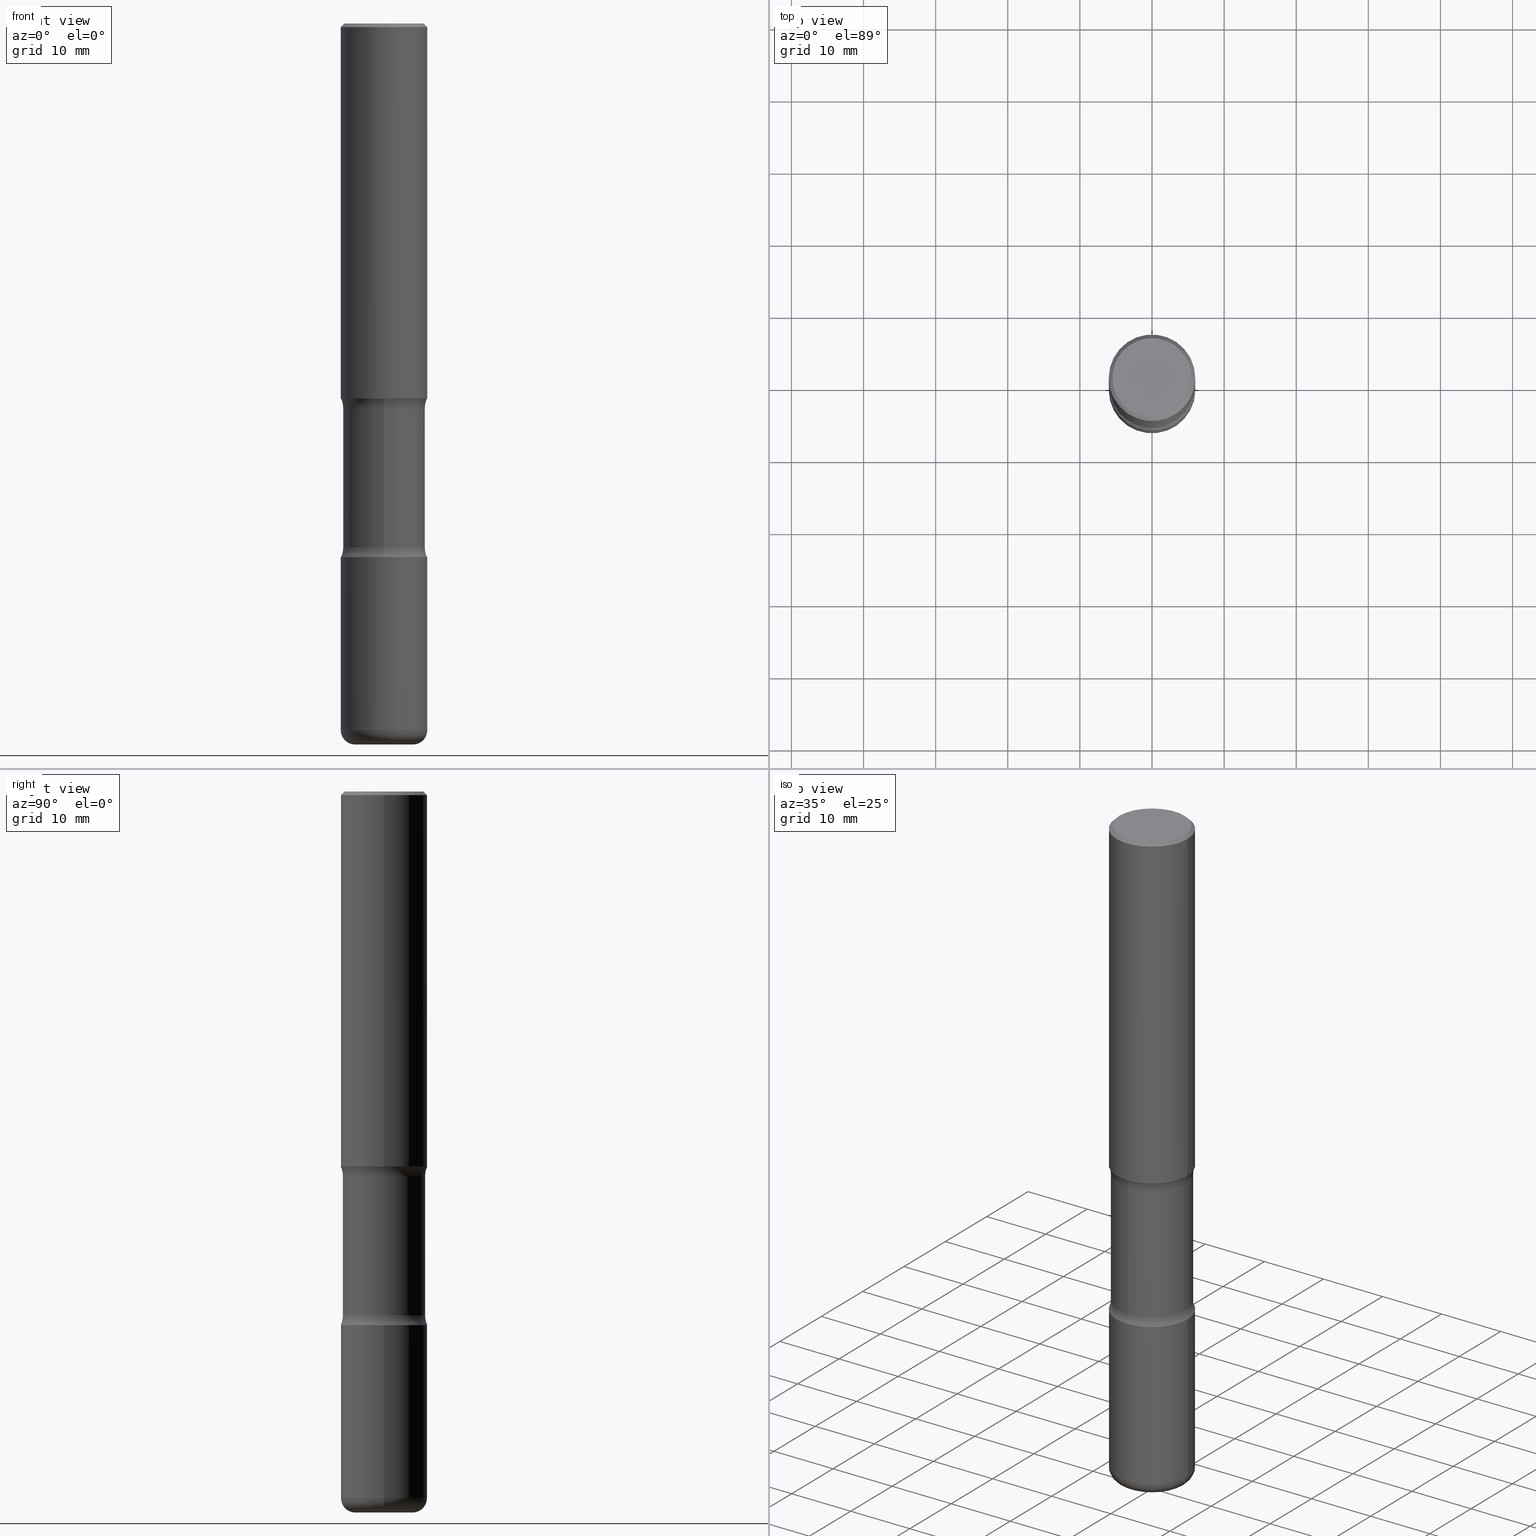
[diagram: canonical four-view strip — front | top / right | iso, engineering-drawing reading convention]
A machine part, canonical four-view strip (front | top / right | iso — engineering-drawing reading convention). The complete STEP part file that produces these views, byte-faithful:
ISO-10303-21;
HEADER;
FILE_DESCRIPTION (( 'STEP AP203' ),
    '1' );
FILE_NAME ('47707.STEP',
    '2024-03-02T07:35:20',
    ( '' ),
    ( '' ),
    'SwSTEP 2.0',
    'SolidWorks 2023',
    '' );
FILE_SCHEMA (( 'CONFIG_CONTROL_DESIGN' ));
ENDSEC;

DATA;
#1 = PRODUCT ( '47707', '47707', '', ( #417 ) ) ;
#2 = COORDINATED_UNIVERSAL_TIME_OFFSET ( 5, 0, .BEHIND. ) ;
#3 = EDGE_CURVE ( 'NONE', #287, #498, #334, .T. ) ;
#4 = CARTESIAN_POINT ( 'NONE',  ( 5.006363740022212241E-29, -7.147760596879688202E-15, -2.047200000000000131 ) ) ;
#5 = CIRCLE ( 'NONE', #428, 0.2161999999999998368 ) ;
#6 = CIRCLE ( 'NONE', #93, 0.2362000000000001321 ) ;
#7 = COORDINATED_UNIVERSAL_TIME_OFFSET ( 5, 0, .BEHIND. ) ;
#8 = CARTESIAN_POINT ( 'NONE',  ( 0.2362000000000003264, -1.512055823412800345E-14, -3.858299999999998509 ) ) ;
#9 = CARTESIAN_POINT ( 'NONE',  ( 5.088323202950023588E-29, -7.401163270367792936E-15, -2.100216601173595432 ) ) ;
#10 = EDGE_CURVE ( 'NONE', #498, #205, #261, .T. ) ;
#11 = APPROVAL_STATUS ( 'not_yet_approved' ) ;
#12 = DIRECTION ( 'NONE',  ( 6.982962677686265922E-15, 1.000000000000000000, -3.376177443336566513E-15 ) ) ;
#13 = EDGE_CURVE ( 'NONE', #342, #363, #156, .T. ) ;
#14 = DATE_AND_TIME ( #179, #405 ) ;
#15 = AXIS2_PLACEMENT_3D ( 'NONE', #37, #251, #169 ) ;
#16 = LOCAL_TIME ( 2, 35, 20.00000000000000000, #7 ) ;
#17 = CARTESIAN_POINT ( 'NONE',  ( -1.043851414335219820E-46, 1.490343170380447200E-32, 4.268512490100411279E-18 ) ) ;
#18 = ORIENTED_EDGE ( 'NONE', *, *, #198, .F. ) ;
#19 = DIRECTION ( 'NONE',  ( 6.982962677686265922E-15, 1.000000000000000000, -3.376177443336566513E-15 ) ) ;
#20 = EDGE_CURVE ( 'NONE', #200, #287, #5, .T. ) ;
#21 = ORIENTED_EDGE ( 'NONE', *, *, #212, .F. ) ;
#22 = CIRCLE ( 'NONE', #396, 0.2362000000000001321 ) ;
#23 = DIRECTION ( 'NONE',  ( 6.982962677686265922E-15, 1.000000000000000000, -2.434802133390609421E-15 ) ) ;
#24 = APPROVAL_PERSON_ORGANIZATION ( #525, #544, #97 ) ;
#25 = ORIENTED_EDGE ( 'NONE', *, *, #325, .F. ) ;
#26 = CARTESIAN_POINT ( 'NONE',  ( -0.1575000000000002232, -1.235207764083634616E-14, -3.858299999999998509 ) ) ;
#27 = ORIENTED_EDGE ( 'NONE', *, *, #220, .T. ) ;
#28 = EDGE_CURVE ( 'NONE', #114, #275, #127, .T. ) ;
#29 = CARTESIAN_POINT ( 'NONE',  ( 5.070539682259229331E-29, -7.426630284172150130E-15, -2.100216601173595432 ) ) ;
#30 = ORIENTED_EDGE ( 'NONE', *, *, #531, .T. ) ;
#31 = ADVANCED_FACE ( 'NONE', ( #338 ), #208, .T. ) ;
#32 = DIRECTION ( 'NONE',  ( 2.438088387897960049E-29, -3.491481338843145188E-15, -1.000000000000000000 ) ) ;
#33 = CIRCLE ( 'NONE', #41, 0.2362000000000001321 ) ;
#34 = VERTEX_POINT ( 'NONE', #520 ) ;
#35 = AXIS2_PLACEMENT_3D ( 'NONE', #284, #237, #199 ) ;
#36 = CARTESIAN_POINT ( 'NONE',  ( 0.000000000000000000, 0.000000000000000000, 0.000000000000000000 ) ) ;
#37 = CARTESIAN_POINT ( 'NONE',  ( 9.435352294904109900E-29, -1.347118244965850534E-14, -3.858299999999998509 ) ) ;
#38 = EDGE_CURVE ( 'NONE', #66, #224, #33, .T. ) ;
#39 = DIRECTION ( 'NONE',  ( 1.000000000000000000, -6.982962677686266711E-15, 4.876217060660159599E-29 ) ) ;
#40 = FACE_OUTER_BOUND ( 'NONE', #191, .T. ) ;
#41 = AXIS2_PLACEMENT_3D ( 'NONE', #124, #466, #382 ) ;
#42 = EDGE_CURVE ( 'NONE', #363, #342, #84, .T. ) ;
#43 = AXIS2_PLACEMENT_3D ( 'NONE', #298, #327, #293 ) ;
#44 = DIRECTION ( 'NONE',  ( -2.445468806185136597E-29, 3.491481338843145583E-15, 1.000000000000000000 ) ) ;
#45 = EDGE_CURVE ( 'NONE', #462, #73, #560, .T. ) ;
#46 = FACE_OUTER_BOUND ( 'NONE', #215, .T. ) ;
#47 = FACE_OUTER_BOUND ( 'NONE', #368, .T. ) ;
#48 = AXIS2_PLACEMENT_3D ( 'NONE', #258, #427, #390 ) ;
#49 = VECTOR ( 'NONE', #171, 39.37007874015748143 ) ;
#50 = CARTESIAN_POINT ( 'NONE',  ( 0.1575000000000002232, -1.457099907139409361E-14, -3.858299999999998509 ) ) ;
#51 = ORIENTED_EDGE ( 'NONE', *, *, #42, .T. ) ;
#52 = CALENDAR_DATE ( 2024, 2, 3 ) ;
#53 = FACE_OUTER_BOUND ( 'NONE', #451, .T. ) ;
#54 = EDGE_CURVE ( 'NONE', #468, #73, #188, .T. ) ;
#55 = PLANE ( 'NONE',  #461 ) ;
#56 = TOROIDAL_SURFACE ( 'NONE', #420, 0.1575000000000002232, 0.07870000000000021423 ) ;
#57 = CIRCLE ( 'NONE', #168, 0.2362000000000002153 ) ;
#58 = DIRECTION ( 'NONE',  ( -2.445468806185136597E-29, 3.491481338843145583E-15, 1.000000000000000000 ) ) ;
#59 = PRODUCT_RELATED_PRODUCT_CATEGORY ( 'detail', '', ( #1 ) ) ;
#60 = DIRECTION ( 'NONE',  ( 2.445468806185136597E-29, -3.491481338843145583E-15, -1.000000000000000000 ) ) ;
#61 = DIRECTION ( 'NONE',  ( 6.982962677686265922E-15, 1.000000000000000000, -2.313165108945183485E-15 ) ) ;
#62 = ORIENTED_EDGE ( 'NONE', *, *, #186, .F. ) ;
#63 = AXIS2_PLACEMENT_3D ( 'NONE', #96, #268, #181 ) ;
#64 = CARTESIAN_POINT ( 'NONE',  ( -0.2361999999999999933, 1.678301941865356591E-15, -1.161852468318208757E-29 ) ) ;
#65 = ORGANIZATION ( 'UNSPECIFIED', 'UNSPECIFIED', '' ) ;
#66 = VERTEX_POINT ( 'NONE', #130 ) ;
#67 = ORIENTED_EDGE ( 'NONE', *, *, #20, .T. ) ;
#68 = CARTESIAN_POINT ( 'NONE',  ( 4.936620538380257512E-29, -7.247636831167487464E-15, -2.047200000000000131 ) ) ;
#69 = EDGE_LOOP ( 'NONE', ( #266, #443 ) ) ;
#70 = ORIENTED_EDGE ( 'NONE', *, *, #83, .T. ) ;
#71 = ORIENTED_EDGE ( 'NONE', *, *, #111, .T. ) ;
#72 = FACE_OUTER_BOUND ( 'NONE', #503, .T. ) ;
#73 = VERTEX_POINT ( 'NONE', #204 ) ;
#74 = ADVANCED_FACE ( 'NONE', ( #376 ), #404, .F. ) ;
#75 = AXIS2_PLACEMENT_3D ( 'NONE', #457, #460, #118 ) ;
#76 = CARTESIAN_POINT ( 'NONE',  ( -0.2361999999999998823, 1.579546157692632438E-15, -0.02000000000000006981 ) ) ;
#77 =( CONVERSION_BASED_UNIT ( 'INCH', #450 ) LENGTH_UNIT ( ) NAMED_UNIT ( #313 ) );
#78 = CARTESIAN_POINT ( 'NONE',  ( -1.043851414335219820E-46, 1.490343170380447200E-32, 4.268512490100411279E-18 ) ) ;
#79 = DIRECTION ( 'NONE',  ( -2.445468806185136597E-29, 3.491481338843145583E-15, 1.000000000000000000 ) ) ;
#80 = CARTESIAN_POINT ( 'NONE',  ( -0.2362000000000003264, -1.179288050779314737E-14, -3.858299999999998509 ) ) ;
#81 = CARTESIAN_POINT ( 'NONE',  ( -0.2361999999999998823, 1.579546157692632438E-15, -0.02000000000000006981 ) ) ;
#82 = FACE_OUTER_BOUND ( 'NONE', #228, .T. ) ;
#83 = EDGE_CURVE ( 'NONE', #462, #34, #506, .T. ) ;
#84 = CIRCLE ( 'NONE', #496, 0.1575000000000002232 ) ;
#85 = CONICAL_SURFACE ( 'NONE', #174, 0.2361999999999998823, 0.7853981633974479459 ) ;
#86 = DIRECTION ( 'NONE',  ( -2.445468806185136597E-29, 3.491481338843145583E-15, 1.000000000000000000 ) ) ;
#87 = CARTESIAN_POINT ( 'NONE',  ( 6.994978375559792251E-29, -9.986975258939122984E-15, -2.860383398826405354 ) ) ;
#88 = UNCERTAINTY_MEASURE_WITH_UNIT (LENGTH_MEASURE( 1.000000000000000082E-05 ), #77, 'distance_accuracy_value', 'NONE');
#89 = SHAPE_DEFINITION_REPRESENTATION ( #242, #247 ) ;
#90 = DIRECTION ( 'NONE',  ( -2.445468806185136877E-29, 3.491481338843145188E-15, 1.000000000000000000 ) ) ;
#91 = DIRECTION ( 'NONE',  ( 1.000000000000000000, -6.982962677686268288E-15, 4.883557194083113462E-29 ) ) ;
#92 = CLOSED_SHELL ( 'NONE', ( #346, #301, #391, #389, #161, #521 ) ) ;
#93 = AXIS2_PLACEMENT_3D ( 'NONE', #378, #117, #373 ) ;
#94 = COORDINATED_UNIVERSAL_TIME_OFFSET ( 5, 0, .BEHIND. ) ;
#95 = EDGE_LOOP ( 'NONE', ( #491, #27, #329, #410 ) ) ;
#96 = CARTESIAN_POINT ( 'NONE',  ( 0.000000000000000000, 0.000000000000000000, 0.000000000000000000 ) ) ;
#97 = APPROVAL_ROLE ( '' ) ;
#98 = CARTESIAN_POINT ( 'NONE',  ( 0.2161999999999998368, -1.586759460484351002E-15, 4.268512490111238857E-18 ) ) ;
#99 = DIRECTION ( 'NONE',  ( 2.525985086076564115E-29, -3.376177443336566513E-15, -1.000000000000000000 ) ) ;
#100 = EDGE_CURVE ( 'NONE', #105, #538, #22, .T. ) ;
#101 = AXIS2_PLACEMENT_3D ( 'NONE', #555, #44, #300 ) ;
#102 = TOROIDAL_SURFACE ( 'NONE', #518, 0.3493999999999999884, 0.1250000000000000000 ) ;
#103 = CARTESIAN_POINT ( 'NONE',  ( -1.579972688886713168E-15, -0.2244000000000099804, -2.860383398826404466 ) ) ;
#104 = CARTESIAN_POINT ( 'NONE',  ( 0.000000000000000000, 0.000000000000000000, 0.000000000000000000 ) ) ;
#105 = VERTEX_POINT ( 'NONE', #207 ) ;
#106 = MANIFOLD_SOLID_BREP ( 'Body-Move/Copy2[2]', #92 ) ;
#107 = CARTESIAN_POINT ( 'NONE',  ( 7.124628819939777829E-29, -1.017208173258562247E-14, -2.913400000000000212 ) ) ;
#108 = VERTEX_POINT ( 'NONE', #172 ) ;
#109 = CIRCLE ( 'NONE', #306, 0.2362000000000001321 ) ;
#110 = DIRECTION ( 'NONE',  ( -2.445468806185136597E-29, 3.491481338843145583E-15, 1.000000000000000000 ) ) ;
#111 = EDGE_CURVE ( 'NONE', #108, #468, #109, .T. ) ;
#112 = ORIENTED_EDGE ( 'NONE', *, *, #494, .F. ) ;
#113 = FACE_OUTER_BOUND ( 'NONE', #257, .T. ) ;
#114 = VERTEX_POINT ( 'NONE', #80 ) ;
#115 = DIRECTION ( 'NONE',  ( 6.982962677686265922E-15, 1.000000000000000000, -2.434802133390609421E-15 ) ) ;
#116 = ORIENTED_EDGE ( 'NONE', *, *, #246, .T. ) ;
#117 = DIRECTION ( 'NONE',  ( -2.445468806185136597E-29, 3.491481338843145583E-15, 1.000000000000000000 ) ) ;
#118 = DIRECTION ( 'NONE',  ( 6.982962677686265922E-15, 1.000000000000000000, -3.652203200085913934E-15 ) ) ;
#119 = CC_DESIGN_APPROVAL ( #292, ( #449 ) ) ;
#120 = APPROVAL_STATUS ( 'not_yet_approved' ) ;
#121 = DIRECTION ( 'NONE',  ( 6.982962677686265922E-15, 1.000000000000000000, -2.434802133390609815E-15 ) ) ;
#122 = PERSON ( 'UNSPECIFIED', 'UNSPECIFIED', 'UNSPECIFIED', ('UNSPECIFIED'), ('UNSPECIFIED'), ('UNSPECIFIED') ) ;
#123 = CARTESIAN_POINT ( 'NONE',  ( -2.397058000421320660E-15, -0.3494000000000072048, -2.100216601173594544 ) ) ;
#124 = CARTESIAN_POINT ( 'NONE',  ( 7.124628819939777829E-29, -1.017208173258562247E-14, -2.913400000000000212 ) ) ;
#125 = ADVANCED_FACE ( 'NONE', ( #46 ), #248, .T. ) ;
#126 = CARTESIAN_POINT ( 'NONE',  ( 1.566976824872894642E-15, 0.2243999999999863049, -3.937000000000000721 ) ) ;
#127 = CIRCLE ( 'NONE', #15, 0.2362000000000002153 ) ;
#128 = AXIS2_PLACEMENT_3D ( 'NONE', #361, #371, #234 ) ;
#129 = PERSON_AND_ORGANIZATION ( #122, #65 ) ;
#130 = CARTESIAN_POINT ( 'NONE',  ( -0.2362000000000001321, -1.014333014925670672E-14, -2.913400000000000212 ) ) ;
#131 = DATE_TIME_ROLE ( 'classification_date' ) ;
#132 = CARTESIAN_POINT ( 'NONE',  ( 5.006363740022212241E-29, -7.147760596879688202E-15, -2.047200000000000131 ) ) ;
#133 = EDGE_LOOP ( 'NONE', ( #508, #67 ) ) ;
#134 = ADVANCED_FACE ( 'NONE', ( #82 ), #331, .T. ) ;
#135 = DIRECTION ( 'NONE',  ( -2.445468806185136597E-29, 3.491481338843145583E-15, 1.000000000000000000 ) ) ;
#136 = VECTOR ( 'NONE', #513, 39.37007874015748143 ) ;
#137 = APPROVAL_PERSON_ORGANIZATION ( #221, #256, #519 ) ;
#138 = CC_DESIGN_APPROVAL ( #256, ( #230 ) ) ;
#139 = CALENDAR_DATE ( 2024, 2, 3 ) ;
#140 = ADVANCED_FACE ( 'NONE', ( #40 ), #433, .T. ) ;
#141 = PLANE ( 'NONE',  #474 ) ;
#142 = DIRECTION ( 'NONE',  ( -6.982962677686266711E-15, -1.000000000000000000, 3.491481338843145583E-15 ) ) ;
#143 = CC_DESIGN_PERSON_AND_ORGANIZATION_ASSIGNMENT ( #478, #530, ( #430 ) ) ;
#144 = ORIENTED_EDGE ( 'NONE', *, *, #38, .T. ) ;
#145 = PLANE ( 'NONE',  #339 ) ;
#146 = CIRCLE ( 'NONE', #452, 0.2161999999999998368 ) ;
#147 = AXIS2_PLACEMENT_3D ( 'NONE', #104, #319, #442 ) ;
#148 = CARTESIAN_POINT ( 'NONE',  ( 4.890937612370289799E-31, -6.982962677686315028E-17, -0.02000000000000006981 ) ) ;
#149 = EDGE_LOOP ( 'NONE', ( #401, #490, #330, #162 ) ) ;
#150 = ORIENTED_EDGE ( 'NONE', *, *, #54, .F. ) ;
#151 = CARTESIAN_POINT ( 'NONE',  ( 1.509716530915769534E-15, 0.2161999999999998368, -7.527240092128373149E-16 ) ) ;
#152 = ORIENTED_EDGE ( 'NONE', *, *, #233, .F. ) ;
#153 = ADVANCED_FACE ( 'NONE', ( #53 ), #141, .F. ) ;
#154 = DIRECTION ( 'NONE',  ( 2.525985086076564115E-29, -3.376177443336566513E-15, -1.000000000000000000 ) ) ;
#155 = VERTEX_POINT ( 'NONE', #479 ) ;
#156 = CIRCLE ( 'NONE', #229, 0.1575000000000002232 ) ;
#157 = FACE_OUTER_BOUND ( 'NONE', #326, .T. ) ;
#158 = VECTOR ( 'NONE', #419, 39.37007874015748143 ) ;
#159 = ORIENTED_EDGE ( 'NONE', *, *, #380, .T. ) ;
#160 = DIRECTION ( 'NONE',  ( 1.000000000000000000, -6.982962677686266711E-15, 0.000000000000000000 ) ) ;
#161 = ADVANCED_FACE ( 'NONE', ( #47 ), #55, .F. ) ;
#162 = ORIENTED_EDGE ( 'NONE', *, *, #325, .T. ) ;
#163 =( NAMED_UNIT ( * ) PLANE_ANGLE_UNIT ( ) SI_UNIT ( $, .RADIAN. ) );
#164 = DIRECTION ( 'NONE',  ( 6.982962677686265922E-15, 1.000000000000000000, -2.434802133390609815E-15 ) ) ;
#165 = PERSON_AND_ORGANIZATION_ROLE ( 'design_owner' ) ;
#166 = AXIS2_PLACEMENT_3D ( 'NONE', #264, #58, #437 ) ;
#167 = DIRECTION ( 'NONE',  ( 6.982962677686265922E-15, 1.000000000000000000, -3.376177443336566513E-15 ) ) ;
#168 = AXIS2_PLACEMENT_3D ( 'NONE', #209, #86, #160 ) ;
#169 = DIRECTION ( 'NONE',  ( 1.000000000000000000, -6.982962677686266711E-15, 0.000000000000000000 ) ) ;
#170 = ADVANCED_FACE ( 'NONE', ( #533 ), #56, .T. ) ;
#171 = DIRECTION ( 'NONE',  ( -2.445468806185136877E-29, 3.491481338843145188E-15, 1.000000000000000000 ) ) ;
#172 = CARTESIAN_POINT ( 'NONE',  ( -1.620449627073565067E-15, -0.2362000000000102629, -2.913399999999999768 ) ) ;
#173 = DATE_AND_TIME ( #52, #16 ) ;
#174 = AXIS2_PLACEMENT_3D ( 'NONE', #148, #60, #400 ) ;
#175 = ORIENTED_EDGE ( 'NONE', *, *, #212, .T. ) ;
#176 = SECURITY_CLASSIFICATION_LEVEL ( 'unclassified' ) ;
#177 = DIRECTION ( 'NONE',  ( 6.860497997771529985E-15, 1.000000000000000000, 0.000000000000000000 ) ) ;
#178 = EDGE_LOOP ( 'NONE', ( #152, #543, #276, #441 ) ) ;
#179 = CALENDAR_DATE ( 2024, 2, 3 ) ;
#180 = CARTESIAN_POINT ( 'NONE',  ( 5.088323202950023588E-29, -7.401163270367792936E-15, -2.100216601173595432 ) ) ;
#181 = DIRECTION ( 'NONE',  ( 1.000000000000000000, -6.982962677686266711E-15, 4.876176775795936353E-29 ) ) ;
#182 = CALENDAR_DATE ( 2024, 2, 3 ) ;
#183 = CARTESIAN_POINT ( 'NONE',  ( -2.397058000421302516E-15, -0.3494000000000099249, -2.860383398826404022 ) ) ;
#184 = CARTESIAN_POINT ( 'NONE',  ( 0.2361999999999999933, -1.649375784469496131E-15, 1.151752954443000088E-29 ) ) ;
#185 = DIRECTION ( 'NONE',  ( 1.000000000000000000, -6.982962677686266711E-15, 4.876176775795936353E-29 ) ) ;
#186 = EDGE_CURVE ( 'NONE', #205, #498, #369, .T. ) ;
#187 = ORIENTED_EDGE ( 'NONE', *, *, #186, .T. ) ;
#188 = CIRCLE ( 'NONE', #556, 0.1250000000000000000 ) ;
#189 = CIRCLE ( 'NONE', #340, 0.2362000000000002431 ) ;
#190 = CARTESIAN_POINT ( 'NONE',  ( -1.620449627073587747E-15, -0.2362000000000074318, -2.047199999999999243 ) ) ;
#191 = EDGE_LOOP ( 'NONE', ( #238, #255, #30, #360 ) ) ;
#192 = CC_DESIGN_DATE_AND_TIME_ASSIGNMENT ( #394, #131, ( #230 ) ) ;
#193 = DIRECTION ( 'NONE',  ( -2.445468806185136597E-29, 3.491481338843145583E-15, 1.000000000000000000 ) ) ;
#194 = ORIENTED_EDGE ( 'NONE', *, *, #233, .T. ) ;
#195 = ADVANCED_FACE ( 'NONE', ( #528 ), #349, .F. ) ;
#196 = ORIENTED_EDGE ( 'NONE', *, *, #111, .F. ) ;
#197 = CIRCLE ( 'NONE', #271, 0.1250000000000000000 ) ;
#198 = EDGE_CURVE ( 'NONE', #108, #384, #197, .T. ) ;
#199 = DIRECTION ( 'NONE',  ( -1.000000000000000000, 6.982962677686267499E-15, 0.000000000000000000 ) ) ;
#200 = VERTEX_POINT ( 'NONE', #98 ) ;
#201 = DIRECTION ( 'NONE',  ( 0.000000000000000000, 0.000000000000000000, 1.000000000000000000 ) ) ;
#202 = CARTESIAN_POINT ( 'NONE',  ( 9.627810689950880306E-29, -1.374596203102546026E-14, -3.936999999999998945 ) ) ;
#203 = CARTESIAN_POINT ( 'NONE',  ( 2.870178087176263655E-28, 1.356904889229186188E-14, -3.936999999999999389 ) ) ;
#204 = CARTESIAN_POINT ( 'NONE',  ( 1.566976824872867821E-15, 0.2243999999999899686, -2.860383398826405799 ) ) ;
#205 = VERTEX_POINT ( 'NONE', #343 ) ;
#206 = ADVANCED_FACE ( 'NONE', ( #532 ), #145, .F. ) ;
#207 = CARTESIAN_POINT ( 'NONE',  ( 0.2362000000000001321, -8.797136381349186305E-15, -2.047200000000000131 ) ) ;
#208 = CYLINDRICAL_SURFACE ( 'NONE', #414, 0.2243999999999999329 ) ;
#209 = CARTESIAN_POINT ( 'NONE',  ( 9.435352294904109900E-29, -1.347118244965850534E-14, -3.858299999999998509 ) ) ;
#210 = DIRECTION ( 'NONE',  ( -2.445468806185136597E-29, 3.491481338843145583E-15, 1.000000000000000000 ) ) ;
#211 = CALENDAR_DATE ( 2024, 2, 3 ) ;
#212 = EDGE_CURVE ( 'NONE', #342, #275, #481, .T. ) ;
#213 = FACE_OUTER_BOUND ( 'NONE', #232, .T. ) ;
#214 = VECTOR ( 'NONE', #217, 39.37007874015748143 ) ;
#215 = EDGE_LOOP ( 'NONE', ( #70, #278, #296, #320 ) ) ;
#216 = AXIS2_PLACEMENT_3D ( 'NONE', #151, #32, #273 ) ;
#217 = DIRECTION ( 'NONE',  ( 0.7071067811865472397, -7.319954787623254468E-15, -0.7071067811865477948 ) ) ;
#218 = APPROVAL_DATE_TIME ( #173, #292 ) ;
#219 = DIRECTION ( 'NONE',  ( -2.445468806185136597E-29, 3.491481338843145583E-15, 1.000000000000000000 ) ) ;
#220 = EDGE_CURVE ( 'NONE', #114, #66, #312, .T. ) ;
#221 = PERSON_AND_ORGANIZATION ( #122, #65 ) ;
#222 = CARTESIAN_POINT ( 'NONE',  ( -0.2362000000000001598, 1.678301941865357775E-15, -1.161852468318209598E-29 ) ) ;
#223 = CARTESIAN_POINT ( 'NONE',  ( 7.124628819939777829E-29, -1.017208173258562247E-14, -2.913400000000000212 ) ) ;
#224 = VERTEX_POINT ( 'NONE', #399 ) ;
#225 = ORIENTED_EDGE ( 'NONE', *, *, #459, .F. ) ;
#226 = LINE ( 'NONE', #64, #289 ) ;
#227 = EDGE_CURVE ( 'NONE', #287, #200, #146, .T. ) ;
#228 = EDGE_LOOP ( 'NONE', ( #225, #51, #175, #407 ) ) ;
#229 = AXIS2_PLACEMENT_3D ( 'NONE', #302, #291, #505 ) ;
#230 = SECURITY_CLASSIFICATION ( '', '', #176 ) ;
#231 = DIRECTION ( 'NONE',  ( -2.445468806185136877E-29, 3.491481338843145188E-15, 1.000000000000000000 ) ) ;
#232 = EDGE_LOOP ( 'NONE', ( #541, #314, #282, #239 ) ) ;
#233 = EDGE_CURVE ( 'NONE', #200, #205, #431, .T. ) ;
#234 = DIRECTION ( 'NONE',  ( -1.000000000000000000, 6.982962677686265922E-15, -4.876176775795935793E-29 ) ) ;
#235 = ORIENTED_EDGE ( 'NONE', *, *, #459, .T. ) ;
#236 = CC_DESIGN_PERSON_AND_ORGANIZATION_ASSIGNMENT ( #344, #426, ( #430 ) ) ;
#237 = DIRECTION ( 'NONE',  ( 2.445468806185136597E-29, -3.491481338843145583E-15, -1.000000000000000000 ) ) ;
#238 = ORIENTED_EDGE ( 'NONE', *, *, #220, .F. ) ;
#239 = ORIENTED_EDGE ( 'NONE', *, *, #511, .F. ) ;
#240 = AXIS2_PLACEMENT_3D ( 'NONE', #50, #142, #472 ) ;
#241 = AXIS2_PLACEMENT_3D ( 'NONE', #456, #415, #115 ) ;
#242 = PRODUCT_DEFINITION_SHAPE ( 'NONE', 'NONE',  #449 ) ;
#243 = DIRECTION ( 'NONE',  ( 1.000000000000000000, -6.982962677686265133E-15, 0.000000000000000000 ) ) ;
#244 = DIRECTION ( 'NONE',  ( 2.525985086076564115E-29, -3.376177443336566513E-15, -1.000000000000000000 ) ) ;
#245 = CARTESIAN_POINT ( 'NONE',  ( -0.2362000000000001598, -1.930493169962915017E-15, -2.047200000000000131 ) ) ;
#246 = EDGE_CURVE ( 'NONE', #105, #205, #476, .T. ) ;
#247 = ADVANCED_BREP_SHAPE_REPRESENTATION ( '47707', ( #283, #106, #470, #323 ), #359 ) ;
#248 = CYLINDRICAL_SURFACE ( 'NONE', #436, 0.2243999999999999329 ) ;
#249 = CARTESIAN_POINT ( 'NONE',  ( 0.2362000000000001598, -1.649375784469497314E-15, 1.151752954443000929E-29 ) ) ;
#250 = CLOSED_SHELL ( 'NONE', ( #125, #74, #269, #195, #153, #206, #383, #31 ) ) ;
#251 = DIRECTION ( 'NONE',  ( -2.445468806185136597E-29, 3.491481338843145583E-15, 1.000000000000000000 ) ) ;
#252 = CONICAL_SURFACE ( 'NONE', #35, 0.2361999999999998823, 0.7853981633974479459 ) ;
#253 = EDGE_LOOP ( 'NONE', ( #159, #144 ) ) ;
#254 = ORIENTED_EDGE ( 'NONE', *, *, #484, .T. ) ;
#255 = ORIENTED_EDGE ( 'NONE', *, *, #28, .T. ) ;
#256 = APPROVAL ( #347, 'UNSPECIFIED' ) ;
#257 = EDGE_LOOP ( 'NONE', ( #455, #194, #187, #357 ) ) ;
#258 = CARTESIAN_POINT ( 'NONE',  ( 4.936620538380257512E-29, -7.247636831167487464E-15, -2.047200000000000131 ) ) ;
#259 = DATE_AND_TIME ( #211, #397 ) ;
#260 = DIRECTION ( 'NONE',  ( 1.000000000000000000, -6.982962677686267499E-15, 0.000000000000000000 ) ) ;
#261 = CIRCLE ( 'NONE', #101, 0.2361999999999998823 ) ;
#262 = CIRCLE ( 'NONE', #272, 0.2362000000000001321 ) ;
#263 = APPROVAL_DATE_TIME ( #522, #256 ) ;
#264 = CARTESIAN_POINT ( 'NONE',  ( 9.435352294904109900E-29, -1.347118244965850534E-14, -3.858299999999998509 ) ) ;
#265 = EDGE_CURVE ( 'NONE', #446, #155, #288, .T. ) ;
#266 = ORIENTED_EDGE ( 'NONE', *, *, #13, .F. ) ;
#267 = COORDINATED_UNIVERSAL_TIME_OFFSET ( 5, 0, .BEHIND. ) ;
#268 = DIRECTION ( 'NONE',  ( -2.445468806185136597E-29, 3.491481338843145583E-15, 1.000000000000000000 ) ) ;
#269 = ADVANCED_FACE ( 'NONE', ( #213 ), #299, .F. ) ;
#270 = DIRECTION ( 'NONE',  ( -2.438088387897960049E-29, 3.491481338843145188E-15, 1.000000000000000000 ) ) ;
#271 = AXIS2_PLACEMENT_3D ( 'NONE', #183, #477, #177 ) ;
#272 = AXIS2_PLACEMENT_3D ( 'NONE', #107, #540, #61 ) ;
#273 = DIRECTION ( 'NONE',  ( -1.000000000000000000, 6.982962677686265922E-15, -4.876176775795935793E-29 ) ) ;
#274 = CARTESIAN_POINT ( 'NONE',  ( -0.1575000000000002232, -1.220986886499822344E-14, -3.936999999999998945 ) ) ;
#275 = VERTEX_POINT ( 'NONE', #8 ) ;
#276 = ORIENTED_EDGE ( 'NONE', *, *, #3, .T. ) ;
#277 = DIRECTION ( 'NONE',  ( 7.105427357601001859E-15, 1.000000000000000000, -3.491481338843145583E-15 ) ) ;
#278 = ORIENTED_EDGE ( 'NONE', *, *, #539, .T. ) ;
#279 = AXIS2_PLACEMENT_3D ( 'NONE', #180, #393, #12 ) ;
#280 = AXIS2_PLACEMENT_3D ( 'NONE', #223, #193, #545 ) ;
#281 = DIRECTION ( 'NONE',  ( 2.525985086076564115E-29, -3.376177443336566513E-15, -1.000000000000000000 ) ) ;
#282 = ORIENTED_EDGE ( 'NONE', *, *, #265, .T. ) ;
#283 = MANIFOLD_SOLID_BREP ( 'Body-Move/Copy2[1]', #358 ) ;
#284 = CARTESIAN_POINT ( 'NONE',  ( 4.890937612370289799E-31, -6.982962677686315028E-17, -0.02000000000000006981 ) ) ;
#285 = ORIENTED_EDGE ( 'NONE', *, *, #408, .F. ) ;
#286 = DIRECTION ( 'NONE',  ( 6.860497997771531562E-15, 1.000000000000000000, 0.000000000000000000 ) ) ;
#287 = VERTEX_POINT ( 'NONE', #409 ) ;
#288 = CIRCLE ( 'NONE', #48, 0.2362000000000002431 ) ;
#289 = VECTOR ( 'NONE', #231, 39.37007874015748143 ) ;
#290 = APPLICATION_PROTOCOL_DEFINITION ( 'international standard', 'config_control_design', 1994, #413 ) ;
#291 = DIRECTION ( 'NONE',  ( -2.445468806185136597E-29, 3.491481338843145583E-15, 1.000000000000000000 ) ) ;
#292 = APPROVAL ( #120, 'UNSPECIFIED' ) ;
#293 = DIRECTION ( 'NONE',  ( -6.982962677686264344E-15, -1.000000000000000000, 0.000000000000000000 ) ) ;
#294 = DIRECTION ( 'NONE',  ( 6.982962677686265922E-15, 1.000000000000000000, -2.313165108945183485E-15 ) ) ;
#295 = DIRECTION ( 'NONE',  ( 1.000000000000000000, -6.860497997771530774E-15, 4.842210945089756248E-29 ) ) ;
#296 = ORIENTED_EDGE ( 'NONE', *, *, #484, .F. ) ;
#297 = DIRECTION ( 'NONE',  ( -2.445468806185136597E-29, 3.491481338843145583E-15, 1.000000000000000000 ) ) ;
#298 = CARTESIAN_POINT ( 'NONE',  ( 2.439847159583631044E-15, 0.3493999999999924388, -2.100216601173596320 ) ) ;
#299 = TOROIDAL_SURFACE ( 'NONE', #438, 0.3493999999999998218, 0.1249999999999999029 ) ;
#300 = DIRECTION ( 'NONE',  ( 1.000000000000000000, -6.982962677686267499E-15, 0.000000000000000000 ) ) ;
#301 = ADVANCED_FACE ( 'NONE', ( #113 ), #252, .T. ) ;
#302 = CARTESIAN_POINT ( 'NONE',  ( 9.627810689950880306E-29, -1.374596203102546026E-14, -3.936999999999998945 ) ) ;
#303 = DIRECTION ( 'NONE',  ( -6.982962677686265922E-15, -1.000000000000000000, 3.376177443336566513E-15 ) ) ;
#304 = APPROVAL_DATE_TIME ( #14, #544 ) ;
#305 = CARTESIAN_POINT ( 'NONE',  ( 0.2361999999999998823, -1.690279253850498179E-15, -0.02000000000000006981 ) ) ;
#306 = AXIS2_PLACEMENT_3D ( 'NONE', #515, #558, #294 ) ;
#307 = CIRCLE ( 'NONE', #280, 0.2362000000000001321 ) ;
#308 = PERSON_AND_ORGANIZATION_ROLE ( 'classification_officer' ) ;
#309 = ADVANCED_FACE ( 'NONE', ( #440 ), #485, .F. ) ;
#310 = DIRECTION ( 'NONE',  ( 1.000000000000000000, -6.982962677686265922E-15, 4.876176775795935793E-29 ) ) ;
#311 = ORIENTED_EDGE ( 'NONE', *, *, #408, .T. ) ;
#312 = LINE ( 'NONE', #222, #388 ) ;
#313 = DIMENSIONAL_EXPONENTS ( 1.000000000000000000, 0.000000000000000000, 0.000000000000000000, 0.000000000000000000, 0.000000000000000000, 0.000000000000000000, 0.000000000000000000 ) ;
#314 = ORIENTED_EDGE ( 'NONE', *, *, #534, .T. ) ;
#315 = DIRECTION ( 'NONE',  ( 6.982962677686265922E-15, 1.000000000000000000, -3.652203200085913934E-15 ) ) ;
#316 = CIRCLE ( 'NONE', #43, 0.1249999999999999029 ) ;
#317 = CYLINDRICAL_SURFACE ( 'NONE', #147, 0.2362000000000001598 ) ;
#318 = ORIENTED_EDGE ( 'NONE', *, *, #539, .F. ) ;
#319 = DIRECTION ( 'NONE',  ( -2.445468806185136597E-29, 3.491481338843145583E-15, 1.000000000000000000 ) ) ;
#320 = ORIENTED_EDGE ( 'NONE', *, *, #45, .F. ) ;
#321 = CARTESIAN_POINT ( 'NONE',  ( 1.649375784469567917E-15, 0.2361999999999899458, -2.913400000000000656 ) ) ;
#322 = ORIENTED_EDGE ( 'NONE', *, *, #54, .T. ) ;
#323 = AXIS2_PLACEMENT_3D ( 'NONE', #36, #201, #454 ) ;
#324 = CYLINDRICAL_SURFACE ( 'NONE', #537, 0.2361999999999999933 ) ;
#325 = EDGE_CURVE ( 'NONE', #155, #446, #189, .T. ) ;
#326 = EDGE_LOOP ( 'NONE', ( #365, #486, #62, #487 ) ) ;
#327 = DIRECTION ( 'NONE',  ( -1.000000000000000000, 6.982962677686265922E-15, -4.883557194083112340E-29 ) ) ;
#328 = EDGE_LOOP ( 'NONE', ( #318, #448, #412, #353 ) ) ;
#329 = ORIENTED_EDGE ( 'NONE', *, *, #380, .F. ) ;
#330 = ORIENTED_EDGE ( 'NONE', *, *, #511, .T. ) ;
#331 = TOROIDAL_SURFACE ( 'NONE', #166, 0.1575000000000002232, 0.07870000000000021423 ) ;
#332 = AXIS2_PLACEMENT_3D ( 'NONE', #203, #385, #381 ) ;
#333 = APPLICATION_PROTOCOL_DEFINITION ( 'international standard', 'config_control_design', 1994, #366 ) ;
#334 = LINE ( 'NONE', #76, #517 ) ;
#335 = CARTESIAN_POINT ( 'NONE',  ( 9.710227154047748282E-29, -1.362793696358492956E-14, -3.937000000000000277 ) ) ;
#336 = LINE ( 'NONE', #559, #158 ) ;
#337 = CC_DESIGN_PERSON_AND_ORGANIZATION_ASSIGNMENT ( #554, #165, ( #1 ) ) ;
#338 = FACE_OUTER_BOUND ( 'NONE', #328, .T. ) ;
#339 = AXIS2_PLACEMENT_3D ( 'NONE', #345, #523, #303 ) ;
#340 = AXIS2_PLACEMENT_3D ( 'NONE', #68, #482, #406 ) ;
#341 = DIRECTION ( 'NONE',  ( 1.000000000000000000, -6.982962677686269077E-15, 0.000000000000000000 ) ) ;
#342 = VERTEX_POINT ( 'NONE', #447 ) ;
#343 = CARTESIAN_POINT ( 'NONE',  ( 0.2361999999999998823, -1.690279253850498179E-15, -0.02000000000000006981 ) ) ;
#344 = PERSON_AND_ORGANIZATION ( #122, #65 ) ;
#345 = CARTESIAN_POINT ( 'NONE',  ( 7.124628819939777829E-29, -1.017208173258562247E-14, -2.913400000000000212 ) ) ;
#346 = ADVANCED_FACE ( 'NONE', ( #157 ), #324, .T. ) ;
#347 = APPROVAL_STATUS ( 'not_yet_approved' ) ;
#348 = DIRECTION ( 'NONE',  ( -2.445468806185136597E-29, 3.491481338843145583E-15, 1.000000000000000000 ) ) ;
#349 = TOROIDAL_SURFACE ( 'NONE', #279, 0.3493999999999998218, 0.1249999999999999029 ) ;
#350 = CIRCLE ( 'NONE', #463, 0.1249999999999999029 ) ;
#351 = COORDINATED_UNIVERSAL_TIME_OFFSET ( 5, 0, .BEHIND. ) ;
#352 = CARTESIAN_POINT ( 'NONE',  ( 5.006363740022212241E-29, -7.147760596879688202E-15, -2.047200000000000131 ) ) ;
#353 = ORIENTED_EDGE ( 'NONE', *, *, #435, .F. ) ;
#354 = CARTESIAN_POINT ( 'NONE',  ( 9.435352294904109900E-29, -1.347118244965850534E-14, -3.858299999999998509 ) ) ;
#355 = EDGE_CURVE ( 'NONE', #34, #462, #421, .T. ) ;
#356 = PLANE ( 'NONE',  #216 ) ;
#357 = ORIENTED_EDGE ( 'NONE', *, *, #3, .F. ) ;
#358 = CLOSED_SHELL ( 'NONE', ( #398, #170, #469, #134, #140, #309 ) ) ;
#359 =( GEOMETRIC_REPRESENTATION_CONTEXT ( 3 ) GLOBAL_UNCERTAINTY_ASSIGNED_CONTEXT ( ( #88 ) ) GLOBAL_UNIT_ASSIGNED_CONTEXT ( ( #77, #163, #422 ) ) REPRESENTATION_CONTEXT ( 'NONE', 'WORKASPACE' ) );
#360 = ORIENTED_EDGE ( 'NONE', *, *, #38, .F. ) ;
#361 = CARTESIAN_POINT ( 'NONE',  ( 7.124628819939777829E-29, -1.017208173258562247E-14, -2.913400000000000212 ) ) ;
#362 = ORIENTED_EDGE ( 'NONE', *, *, #488, .F. ) ;
#363 = VERTEX_POINT ( 'NONE', #274 ) ;
#364 = DIRECTION ( 'NONE',  ( -1.000000000000000000, 7.105427357600997914E-15, 0.000000000000000000 ) ) ;
#365 = ORIENTED_EDGE ( 'NONE', *, *, #100, .T. ) ;
#366 = APPLICATION_CONTEXT ( 'configuration controlled 3d designs of mechanical parts and assemblies' ) ;
#367 = DIRECTION ( 'NONE',  ( 2.525985086076564115E-29, -3.376177443336566513E-15, -1.000000000000000000 ) ) ;
#368 = EDGE_LOOP ( 'NONE', ( #500, #112 ) ) ;
#369 = CIRCLE ( 'NONE', #526, 0.2361999999999998823 ) ;
#370 = CIRCLE ( 'NONE', #483, 0.2243999999999999606 ) ;
#371 = DIRECTION ( 'NONE',  ( 2.438088387897960049E-29, -3.491481338843145188E-15, -1.000000000000000000 ) ) ;
#372 = EDGE_LOOP ( 'NONE', ( #495, #235, #362, #21 ) ) ;
#373 = DIRECTION ( 'NONE',  ( 1.000000000000000000, -6.982962677686269077E-15, 0.000000000000000000 ) ) ;
#374 = DIRECTION ( 'NONE',  ( 2.525985086076564115E-29, -3.376177443336566513E-15, -1.000000000000000000 ) ) ;
#375 = ORIENTED_EDGE ( 'NONE', *, *, #198, .T. ) ;
#376 = FACE_OUTER_BOUND ( 'NONE', #547, .T. ) ;
#377 = LOCAL_TIME ( 2, 35, 20.00000000000000000, #267 ) ;
#378 = CARTESIAN_POINT ( 'NONE',  ( 5.006363740022212241E-29, -7.147760596879688202E-15, -2.047200000000000131 ) ) ;
#379 = DIRECTION ( 'NONE',  ( -1.000000000000000000, 6.982962677686265922E-15, -4.883557194083112340E-29 ) ) ;
#380 = EDGE_CURVE ( 'NONE', #224, #66, #307, .T. ) ;
#381 = DIRECTION ( 'NONE',  ( -1.000000000000000000, 6.982962677686265922E-15, -4.876176775795935793E-29 ) ) ;
#382 = DIRECTION ( 'NONE',  ( 1.000000000000000000, -6.982962677686269077E-15, 0.000000000000000000 ) ) ;
#383 = ADVANCED_FACE ( 'NONE', ( #72 ), #102, .F. ) ;
#384 = VERTEX_POINT ( 'NONE', #103 ) ;
#385 = DIRECTION ( 'NONE',  ( 2.438088387897960049E-29, -3.491481338843145188E-15, -1.000000000000000000 ) ) ;
#386 = DIRECTION ( 'NONE',  ( 2.525985086076564115E-29, -3.376177443336566513E-15, -1.000000000000000000 ) ) ;
#387 = DATE_TIME_ROLE ( 'creation_date' ) ;
#388 = VECTOR ( 'NONE', #524, 39.37007874015748143 ) ;
#389 = ADVANCED_FACE ( 'NONE', ( #489 ), #356, .F. ) ;
#390 = DIRECTION ( 'NONE',  ( 6.982962677686265922E-15, 1.000000000000000000, -3.469747663417773452E-15 ) ) ;
#391 = ADVANCED_FACE ( 'NONE', ( #439 ), #85, .T. ) ;
#392 = PERSON_AND_ORGANIZATION_ROLE ( 'creator' ) ;
#393 = DIRECTION ( 'NONE',  ( 2.525985086076564115E-29, -3.376177443336566513E-15, -1.000000000000000000 ) ) ;
#394 = DATE_AND_TIME ( #139, #377 ) ;
#395 = CARTESIAN_POINT ( 'NONE',  ( 4.890937612370289799E-31, -6.982962677686315028E-17, -0.02000000000000006981 ) ) ;
#396 = AXIS2_PLACEMENT_3D ( 'NONE', #4, #425, #341 ) ;
#397 = LOCAL_TIME ( 2, 35, 20.00000000000000000, #2 ) ;
#398 = ADVANCED_FACE ( 'NONE', ( #536 ), #317, .T. ) ;
#399 = CARTESIAN_POINT ( 'NONE',  ( 0.2362000000000001321, -1.182145751705511899E-14, -2.913400000000000212 ) ) ;
#400 = DIRECTION ( 'NONE',  ( -1.000000000000000000, 6.982962677686267499E-15, 0.000000000000000000 ) ) ;
#401 = ORIENTED_EDGE ( 'NONE', *, *, #534, .F. ) ;
#402 = CARTESIAN_POINT ( 'NONE',  ( 6.990709676060807691E-29, -9.993088279580958225E-15, -2.860383398826405354 ) ) ;
#403 = ORIENTED_EDGE ( 'NONE', *, *, #435, .T. ) ;
#404 = TOROIDAL_SURFACE ( 'NONE', #546, 0.3493999999999999884, 0.1250000000000000000 ) ;
#405 = LOCAL_TIME ( 2, 35, 20.00000000000000000, #94 ) ;
#406 = DIRECTION ( 'NONE',  ( 6.982962677686265922E-15, 1.000000000000000000, -3.469747663417773452E-15 ) ) ;
#407 = ORIENTED_EDGE ( 'NONE', *, *, #28, .F. ) ;
#408 = EDGE_CURVE ( 'NONE', #468, #108, #262, .T. ) ;
#409 = CARTESIAN_POINT ( 'NONE',  ( -0.2161999999999998368, 1.544631344304201183E-15, 4.268512490089730842E-18 ) ) ;
#410 = ORIENTED_EDGE ( 'NONE', *, *, #531, .F. ) ;
#411 = DIRECTION ( 'NONE',  ( 2.525985086076564115E-29, -3.376177443336566513E-15, -1.000000000000000000 ) ) ;
#412 = ORIENTED_EDGE ( 'NONE', *, *, #45, .T. ) ;
#413 = APPLICATION_CONTEXT ( 'configuration controlled 3d designs of mechanical parts and assemblies' ) ;
#414 = AXIS2_PLACEMENT_3D ( 'NONE', #335, #244, #121 ) ;
#415 = DIRECTION ( 'NONE',  ( 2.525985086076564115E-29, -3.376177443336566513E-15, -1.000000000000000000 ) ) ;
#416 = CARTESIAN_POINT ( 'NONE',  ( 9.710227154047748282E-29, -1.362793696358492956E-14, -3.937000000000000277 ) ) ;
#417 = MECHANICAL_CONTEXT ( 'NONE', #413, 'mechanical' ) ;
#418 = CARTESIAN_POINT ( 'NONE',  ( 2.439847159583651160E-15, 0.3493999999999899964, -2.860383398826406243 ) ) ;
#419 = DIRECTION ( 'NONE',  ( 2.525985086076564115E-29, -3.376177443336566513E-15, -1.000000000000000000 ) ) ;
#420 = AXIS2_PLACEMENT_3D ( 'NONE', #354, #219, #91 ) ;
#421 = CIRCLE ( 'NONE', #507, 0.2243999999999999606 ) ;
#422 =( NAMED_UNIT ( * ) SI_UNIT ( $, .STERADIAN. ) SOLID_ANGLE_UNIT ( ) );
#423 = ORIENTED_EDGE ( 'NONE', *, *, #494, .T. ) ;
#424 = EDGE_CURVE ( 'NONE', #538, #498, #226, .T. ) ;
#425 = DIRECTION ( 'NONE',  ( -2.445468806185136597E-29, 3.491481338843145583E-15, 1.000000000000000000 ) ) ;
#426 = PERSON_AND_ORGANIZATION_ROLE ( 'creator' ) ;
#427 = DIRECTION ( 'NONE',  ( 2.525985086076564115E-29, -3.376177443336566513E-15, -1.000000000000000000 ) ) ;
#428 = AXIS2_PLACEMENT_3D ( 'NONE', #78, #297, #39 ) ;
#429 = CC_DESIGN_PERSON_AND_ORGANIZATION_ASSIGNMENT ( #473, #308, ( #230 ) ) ;
#430 = PRODUCT_DEFINITION_FORMATION_WITH_SPECIFIED_SOURCE ( 'ANY', '', #1, .NOT_KNOWN. ) ;
#431 = LINE ( 'NONE', #305, #214 ) ;
#432 = DESIGN_CONTEXT ( 'detailed design', #366, 'design' ) ;
#433 = CYLINDRICAL_SURFACE ( 'NONE', #63, 0.2362000000000001598 ) ;
#434 = DIRECTION ( 'NONE',  ( 6.982962677686265922E-15, 1.000000000000000000, -3.376177443336566513E-15 ) ) ;
#435 = EDGE_CURVE ( 'NONE', #384, #73, #370, .T. ) ;
#436 = AXIS2_PLACEMENT_3D ( 'NONE', #416, #374, #164 ) ;
#437 = DIRECTION ( 'NONE',  ( 1.000000000000000000, -6.982962677686268288E-15, 4.883557194083113462E-29 ) ) ;
#438 = AXIS2_PLACEMENT_3D ( 'NONE', #9, #367, #445 ) ;
#439 = FACE_OUTER_BOUND ( 'NONE', #178, .T. ) ;
#440 = FACE_OUTER_BOUND ( 'NONE', #253, .T. ) ;
#441 = ORIENTED_EDGE ( 'NONE', *, *, #10, .T. ) ;
#442 = DIRECTION ( 'NONE',  ( 1.000000000000000000, -6.982962677686266711E-15, 4.876176775795936353E-29 ) ) ;
#443 = ORIENTED_EDGE ( 'NONE', *, *, #42, .F. ) ;
#444 = CIRCLE ( 'NONE', #453, 0.07870000000000021423 ) ;
#445 = DIRECTION ( 'NONE',  ( 6.982962677686265922E-15, 1.000000000000000000, -3.376177443336566513E-15 ) ) ;
#446 = VERTEX_POINT ( 'NONE', #190 ) ;
#447 = CARTESIAN_POINT ( 'NONE',  ( 0.1575000000000002232, -1.484577865276104695E-14, -3.936999999999998945 ) ) ;
#448 = ORIENTED_EDGE ( 'NONE', *, *, #355, .T. ) ;
#449 = PRODUCT_DEFINITION ( 'UNKNOWN', '', #430, #432 ) ;
#450 = LENGTH_MEASURE_WITH_UNIT ( LENGTH_MEASURE( 0.02539999999999999897 ), #514 );
#451 = EDGE_LOOP ( 'NONE', ( #25, #552 ) ) ;
#452 = AXIS2_PLACEMENT_3D ( 'NONE', #17, #135, #467 ) ;
#453 = AXIS2_PLACEMENT_3D ( 'NONE', #26, #277, #364 ) ;
#454 = DIRECTION ( 'NONE',  ( 1.000000000000000000, 0.000000000000000000, 0.000000000000000000 ) ) ;
#455 = ORIENTED_EDGE ( 'NONE', *, *, #20, .F. ) ;
#456 = CARTESIAN_POINT ( 'NONE',  ( 6.990709676060807691E-29, -9.993088279580958225E-15, -2.860383398826405354 ) ) ;
#457 = CARTESIAN_POINT ( 'NONE',  ( 5.070539682259229331E-29, -7.426630284172150130E-15, -2.100216601173595432 ) ) ;
#458 = FACE_OUTER_BOUND ( 'NONE', #550, .T. ) ;
#459 = EDGE_CURVE ( 'NONE', #363, #114, #444, .T. ) ;
#460 = DIRECTION ( 'NONE',  ( 2.525985086076564115E-29, -3.376177443336566513E-15, -1.000000000000000000 ) ) ;
#461 = AXIS2_PLACEMENT_3D ( 'NONE', #352, #270, #310 ) ;
#462 = VERTEX_POINT ( 'NONE', #542 ) ;
#463 = AXIS2_PLACEMENT_3D ( 'NONE', #123, #295, #286 ) ;
#464 = LOCAL_TIME ( 2, 35, 20.00000000000000000, #351 ) ;
#465 = LINE ( 'NONE', #249, #49 ) ;
#466 = DIRECTION ( 'NONE',  ( -2.445468806185136597E-29, 3.491481338843145583E-15, 1.000000000000000000 ) ) ;
#467 = DIRECTION ( 'NONE',  ( 1.000000000000000000, -6.982962677686266711E-15, 4.876217060660159599E-29 ) ) ;
#468 = VERTEX_POINT ( 'NONE', #321 ) ;
#469 = ADVANCED_FACE ( 'NONE', ( #493 ), #512, .T. ) ;
#470 = MANIFOLD_SOLID_BREP ( 'Body-Move/Copy2[4]', #250 ) ;
#471 = APPROVAL_ROLE ( '' ) ;
#472 = DIRECTION ( 'NONE',  ( 1.000000000000000000, -6.982962677686276177E-15, 0.000000000000000000 ) ) ;
#473 = PERSON_AND_ORGANIZATION ( #122, #65 ) ;
#474 = AXIS2_PLACEMENT_3D ( 'NONE', #132, #99, #434 ) ;
#475 = CC_DESIGN_APPROVAL ( #544, ( #430 ) ) ;
#476 = LINE ( 'NONE', #184, #535 ) ;
#477 = DIRECTION ( 'NONE',  ( 1.000000000000000000, -6.860497997771530774E-15, 4.842210945089756248E-29 ) ) ;
#478 = PERSON_AND_ORGANIZATION ( #122, #65 ) ;
#479 = CARTESIAN_POINT ( 'NONE',  ( 1.649375784469546815E-15, 0.2361999999999930266, -2.047200000000001019 ) ) ;
#480 = CC_DESIGN_PERSON_AND_ORGANIZATION_ASSIGNMENT ( #129, #392, ( #449 ) ) ;
#481 = CIRCLE ( 'NONE', #240, 0.07870000000000021423 ) ;
#482 = DIRECTION ( 'NONE',  ( 2.525985086076564115E-29, -3.376177443336566513E-15, -1.000000000000000000 ) ) ;
#483 = AXIS2_PLACEMENT_3D ( 'NONE', #402, #154, #23 ) ;
#484 = EDGE_CURVE ( 'NONE', #73, #384, #557, .T. ) ;
#485 = PLANE ( 'NONE',  #128 ) ;
#486 = ORIENTED_EDGE ( 'NONE', *, *, #424, .T. ) ;
#487 = ORIENTED_EDGE ( 'NONE', *, *, #246, .F. ) ;
#488 = EDGE_CURVE ( 'NONE', #275, #114, #57, .T. ) ;
#489 = FACE_OUTER_BOUND ( 'NONE', #133, .T. ) ;
#490 = ORIENTED_EDGE ( 'NONE', *, *, #83, .F. ) ;
#491 = ORIENTED_EDGE ( 'NONE', *, *, #488, .T. ) ;
#492 = ORIENTED_EDGE ( 'NONE', *, *, #424, .F. ) ;
#493 = FACE_OUTER_BOUND ( 'NONE', #69, .T. ) ;
#494 = EDGE_CURVE ( 'NONE', #538, #105, #6, .T. ) ;
#495 = ORIENTED_EDGE ( 'NONE', *, *, #13, .T. ) ;
#496 = AXIS2_PLACEMENT_3D ( 'NONE', #202, #210, #243 ) ;
#497 = CARTESIAN_POINT ( 'NONE',  ( 6.994978375559792251E-29, -9.986975258939122984E-15, -2.860383398826405354 ) ) ;
#498 = VERTEX_POINT ( 'NONE', #81 ) ;
#499 = CC_DESIGN_DATE_AND_TIME_ASSIGNMENT ( #259, #387, ( #449 ) ) ;
#500 = ORIENTED_EDGE ( 'NONE', *, *, #100, .F. ) ;
#501 = ORIENTED_EDGE ( 'NONE', *, *, #10, .F. ) ;
#502 = CYLINDRICAL_SURFACE ( 'NONE', #527, 0.2361999999999999933 ) ;
#503 = EDGE_LOOP ( 'NONE', ( #18, #285, #322, #254 ) ) ;
#504 = CARTESIAN_POINT ( 'NONE',  ( 0.000000000000000000, 0.000000000000000000, 0.000000000000000000 ) ) ;
#505 = DIRECTION ( 'NONE',  ( 1.000000000000000000, -6.982962677686265133E-15, 0.000000000000000000 ) ) ;
#506 = CIRCLE ( 'NONE', #75, 0.2243999999999999606 ) ;
#507 = AXIS2_PLACEMENT_3D ( 'NONE', #29, #281, #315 ) ;
#508 = ORIENTED_EDGE ( 'NONE', *, *, #227, .T. ) ;
#509 = PERSON_AND_ORGANIZATION ( #122, #65 ) ;
#510 = DIRECTION ( 'NONE',  ( -0.7071067811865472397, 2.468850131082253905E-15, -0.7071067811865477948 ) ) ;
#511 = EDGE_CURVE ( 'NONE', #462, #155, #316, .T. ) ;
#512 = PLANE ( 'NONE',  #332 ) ;
#513 = DIRECTION ( 'NONE',  ( 2.525985086076564115E-29, -3.376177443336566513E-15, -1.000000000000000000 ) ) ;
#514 =( LENGTH_UNIT ( ) NAMED_UNIT ( * ) SI_UNIT ( $, .METRE. ) );
#515 = CARTESIAN_POINT ( 'NONE',  ( 7.124628819939777829E-29, -1.017208173258562247E-14, -2.913400000000000212 ) ) ;
#516 = EDGE_LOOP ( 'NONE', ( #311, #71 ) ) ;
#517 = VECTOR ( 'NONE', #510, 39.37007874015748143 ) ;
#518 = AXIS2_PLACEMENT_3D ( 'NONE', #497, #411, #19 ) ;
#519 = APPROVAL_ROLE ( '' ) ;
#520 = CARTESIAN_POINT ( 'NONE',  ( -1.579972688886734072E-15, -0.2244000000000073713, -2.100216601173594544 ) ) ;
#521 = ADVANCED_FACE ( 'NONE', ( #458 ), #502, .T. ) ;
#522 = DATE_AND_TIME ( #182, #464 ) ;
#523 = DIRECTION ( 'NONE',  ( -2.525985086076564115E-29, 3.376177443336566513E-15, 1.000000000000000000 ) ) ;
#524 = DIRECTION ( 'NONE',  ( -2.445468806185136877E-29, 3.491481338843145188E-15, 1.000000000000000000 ) ) ;
#525 = PERSON_AND_ORGANIZATION ( #122, #65 ) ;
#526 = AXIS2_PLACEMENT_3D ( 'NONE', #395, #348, #260 ) ;
#527 = AXIS2_PLACEMENT_3D ( 'NONE', #504, #79, #551 ) ;
#528 = FACE_OUTER_BOUND ( 'NONE', #149, .T. ) ;
#529 = CC_DESIGN_SECURITY_CLASSIFICATION ( #230, ( #430 ) ) ;
#530 = PERSON_AND_ORGANIZATION_ROLE ( 'design_supplier' ) ;
#531 = EDGE_CURVE ( 'NONE', #275, #224, #465, .T. ) ;
#532 = FACE_OUTER_BOUND ( 'NONE', #516, .T. ) ;
#533 = FACE_OUTER_BOUND ( 'NONE', #372, .T. ) ;
#534 = EDGE_CURVE ( 'NONE', #34, #446, #350, .T. ) ;
#535 = VECTOR ( 'NONE', #90, 39.37007874015748143 ) ;
#536 = FACE_OUTER_BOUND ( 'NONE', #95, .T. ) ;
#537 = AXIS2_PLACEMENT_3D ( 'NONE', #549, #110, #185 ) ;
#538 = VERTEX_POINT ( 'NONE', #245 ) ;
#539 = EDGE_CURVE ( 'NONE', #34, #384, #336, .T. ) ;
#540 = DIRECTION ( 'NONE',  ( 2.525985086076564115E-29, -3.376177443336566513E-15, -1.000000000000000000 ) ) ;
#541 = ORIENTED_EDGE ( 'NONE', *, *, #355, .F. ) ;
#542 = CARTESIAN_POINT ( 'NONE',  ( 1.566976824872848494E-15, 0.2243999999999925499, -2.100216601173596320 ) ) ;
#543 = ORIENTED_EDGE ( 'NONE', *, *, #227, .F. ) ;
#544 = APPROVAL ( #11, 'UNSPECIFIED' ) ;
#545 = DIRECTION ( 'NONE',  ( 1.000000000000000000, -6.982962677686269077E-15, 0.000000000000000000 ) ) ;
#546 = AXIS2_PLACEMENT_3D ( 'NONE', #87, #386, #167 ) ;
#547 = EDGE_LOOP ( 'NONE', ( #196, #375, #403, #150 ) ) ;
#548 = APPROVAL_PERSON_ORGANIZATION ( #509, #292, #471 ) ;
#549 = CARTESIAN_POINT ( 'NONE',  ( 0.000000000000000000, 0.000000000000000000, 0.000000000000000000 ) ) ;
#550 = EDGE_LOOP ( 'NONE', ( #492, #423, #116, #501 ) ) ;
#551 = DIRECTION ( 'NONE',  ( 1.000000000000000000, -6.982962677686266711E-15, 4.876176775795936353E-29 ) ) ;
#552 = ORIENTED_EDGE ( 'NONE', *, *, #265, .F. ) ;
#553 = DIRECTION ( 'NONE',  ( -6.982962677686266711E-15, -1.000000000000000000, 0.000000000000000000 ) ) ;
#554 = PERSON_AND_ORGANIZATION ( #122, #65 ) ;
#555 = CARTESIAN_POINT ( 'NONE',  ( 4.890937612370289799E-31, -6.982962677686315028E-17, -0.02000000000000006981 ) ) ;
#556 = AXIS2_PLACEMENT_3D ( 'NONE', #418, #379, #553 ) ;
#557 = CIRCLE ( 'NONE', #241, 0.2243999999999999606 ) ;
#558 = DIRECTION ( 'NONE',  ( 2.525985086076564115E-29, -3.376177443336566513E-15, -1.000000000000000000 ) ) ;
#559 = CARTESIAN_POINT ( 'NONE',  ( -1.539495750699834052E-15, -0.2244000000000135608, -3.936999999999999389 ) ) ;
#560 = LINE ( 'NONE', #126, #136 ) ;
ENDSEC;
END-ISO-10303-21;
